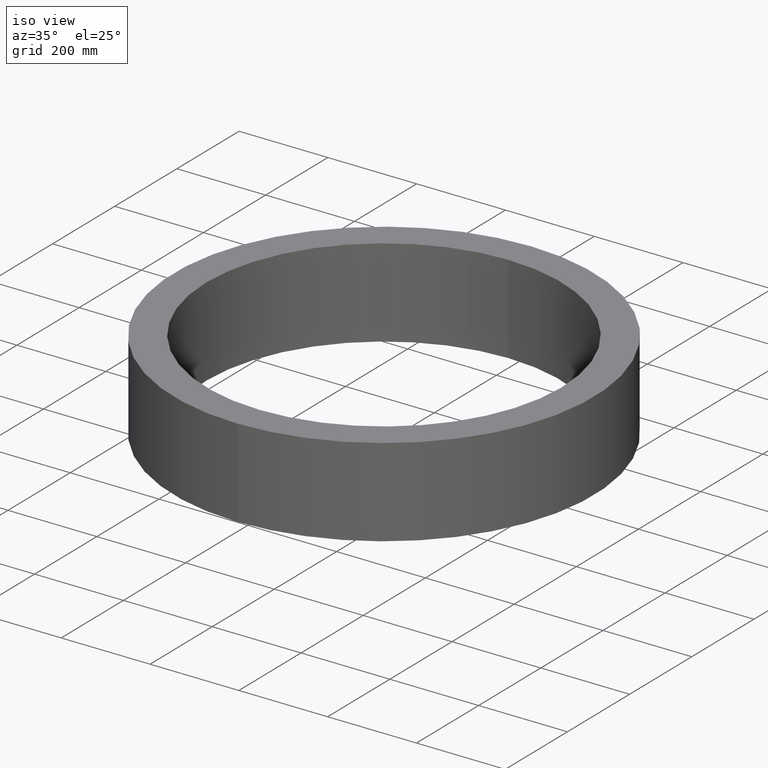
[diagram: clean part render]
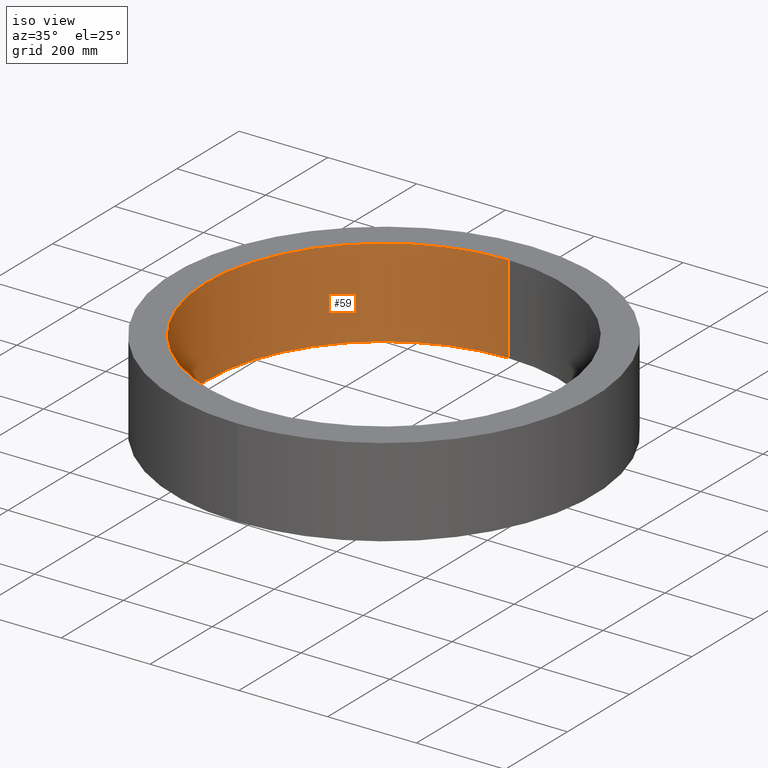
[diagram: same view with one face highlighted and labeled with its STEP entity id]
A machine part, iso view. The second image highlights one B-rep face of the part: STEP entity #59.
In plain terms, the highlighted cylindrical surface (partial cylindrical patch) has radius 400 mm, axis along (-0, -0, -1).
Its self-contained STEP definition (entity closure, byte-faithful):
#2 = VECTOR ( 'NONE', #161, 1000.000000000000000 ) ;
#12 = CARTESIAN_POINT ( 'NONE',  ( 4.898587196589412868E-14, 0.0000000000000000000, 400.0000000000000000 ) ) ;
#14 = DIRECTION ( 'NONE',  ( 0.0000000000000000000, 0.0000000000000000000, 1.000000000000000000 ) ) ;
#22 = LINE ( 'NONE', #337, #154 ) ;
#33 = CARTESIAN_POINT ( 'NONE',  ( 0.0000000000000000000, 0.0000000000000000000, -400.0000000000000000 ) ) ;
#34 = FACE_OUTER_BOUND ( 'NONE', #170, .T. ) ;
#35 = EDGE_CURVE ( 'NONE', #194, #213, #77, .T. ) ;
#43 = CARTESIAN_POINT ( 'NONE',  ( 0.0000000000000000000, 200.0000000000000000, -400.0000000000000000 ) ) ;
#59 = ADVANCED_FACE ( 'NONE', ( #34 ), #271, .F. ) ;
#63 = VERTEX_POINT ( 'NONE', #12 ) ;
#64 = ORIENTED_EDGE ( 'NONE', *, *, #278, .T. ) ;
#66 = DIRECTION ( 'NONE',  ( -0.0000000000000000000, -1.000000000000000000, -0.0000000000000000000 ) ) ;
#77 = CIRCLE ( 'NONE', #350, 400.0000000000000000 ) ;
#90 = DIRECTION ( 'NONE',  ( 0.0000000000000000000, 0.0000000000000000000, -1.000000000000000000 ) ) ;
#99 = VERTEX_POINT ( 'NONE', #33 ) ;
#113 = ORIENTED_EDGE ( 'NONE', *, *, #35, .T. ) ;
#123 = CARTESIAN_POINT ( 'NONE',  ( 0.0000000000000000000, 200.0000000000000000, 0.0000000000000000000 ) ) ;
#128 = ORIENTED_EDGE ( 'NONE', *, *, #241, .F. ) ;
#129 = LINE ( 'NONE', #247, #2 ) ;
#133 = DIRECTION ( 'NONE',  ( 0.0000000000000000000, 0.0000000000000000000, 1.000000000000000000 ) ) ;
#144 = CARTESIAN_POINT ( 'NONE',  ( 0.0000000000000000000, 0.0000000000000000000, 0.0000000000000000000 ) ) ;
#145 = DIRECTION ( 'NONE',  ( -0.0000000000000000000, -1.000000000000000000, -0.0000000000000000000 ) ) ;
#154 = VECTOR ( 'NONE', #66, 1000.000000000000000 ) ;
#161 = DIRECTION ( 'NONE',  ( -0.0000000000000000000, -1.000000000000000000, -0.0000000000000000000 ) ) ;
#167 = EDGE_CURVE ( 'NONE', #63, #99, #363, .T. ) ;
#170 = EDGE_LOOP ( 'NONE', ( #128, #113, #64, #184 ) ) ;
#184 = ORIENTED_EDGE ( 'NONE', *, *, #167, .F. ) ;
#188 = DIRECTION ( 'NONE',  ( 0.0000000000000000000, 1.000000000000000000, 0.0000000000000000000 ) ) ;
#193 = CARTESIAN_POINT ( 'NONE',  ( 4.898587196589412868E-14, 200.0000000000000000, 400.0000000000000000 ) ) ;
#194 = VERTEX_POINT ( 'NONE', #193 ) ;
#213 = VERTEX_POINT ( 'NONE', #43 ) ;
#241 = EDGE_CURVE ( 'NONE', #194, #63, #22, .T. ) ;
#247 = CARTESIAN_POINT ( 'NONE',  ( 0.0000000000000000000, 200.0000000000000000, -400.0000000000000000 ) ) ;
#263 = DIRECTION ( 'NONE',  ( 0.0000000000000000000, 1.000000000000000000, 0.0000000000000000000 ) ) ;
#271 = CYLINDRICAL_SURFACE ( 'NONE', #279, 400.0000000000000000 ) ;
#278 = EDGE_CURVE ( 'NONE', #213, #99, #129, .T. ) ;
#279 = AXIS2_PLACEMENT_3D ( 'NONE', #286, #145, #90 ) ;
#286 = CARTESIAN_POINT ( 'NONE',  ( 0.0000000000000000000, 200.0000000000000000, 0.0000000000000000000 ) ) ;
#328 = AXIS2_PLACEMENT_3D ( 'NONE', #144, #263, #133 ) ;
#337 = CARTESIAN_POINT ( 'NONE',  ( 4.898587196589412868E-14, 200.0000000000000000, 400.0000000000000000 ) ) ;
#350 = AXIS2_PLACEMENT_3D ( 'NONE', #123, #188, #14 ) ;
#363 = CIRCLE ( 'NONE', #328, 400.0000000000000000 ) ;